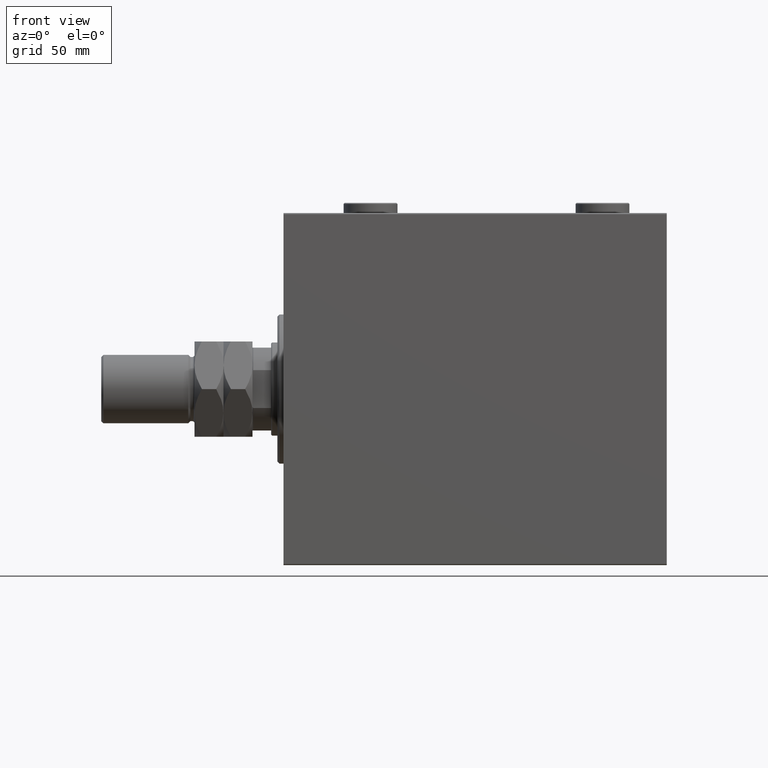
[diagram: clean part render]
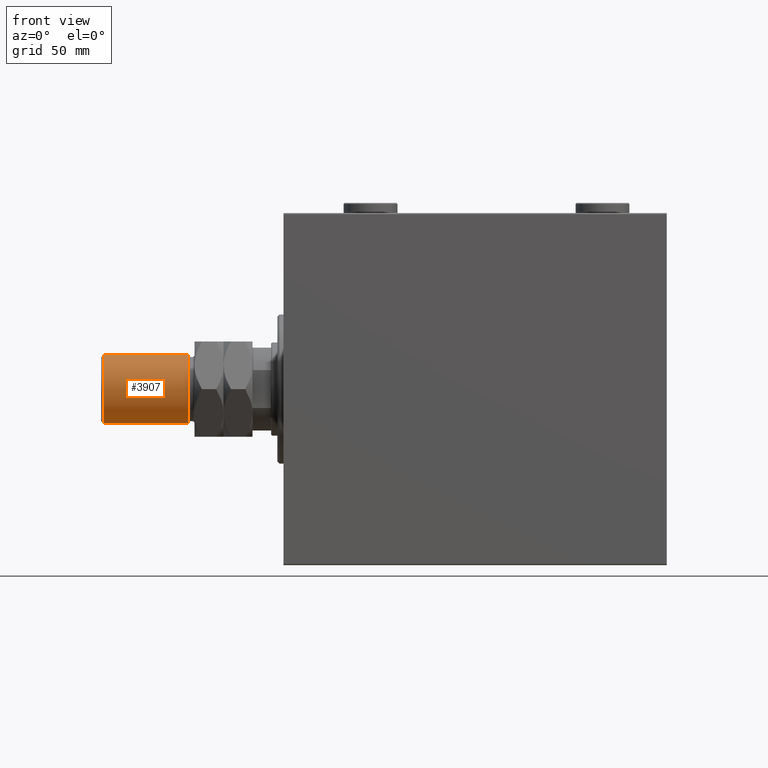
[diagram: same view with one face highlighted and labeled with its STEP entity id]
A machine part, front view. The second image highlights one B-rep face of the part: STEP entity #3907.
In plain terms, the highlighted cylindrical surface (edge-blend (fillet) strip) has radius 16.5 mm, axis along (1, -0, -0).
Its self-contained STEP definition (entity closure, byte-faithful):
#760 = EDGE_CURVE ( 'NONE', #43003, #20032, #23784, .T. ) ;
#1394 = CARTESIAN_POINT ( 'NONE',  ( -16.50000000000000000, 0.000000000000000000, 30.99999999999998579 ) ) ;
#2502 = ORIENTED_EDGE ( 'NONE', *, *, #43355, .T. ) ;
#2937 = CIRCLE ( 'NONE', #39680, 16.50000000000000000 ) ;
#3907 = ADVANCED_FACE ( 'NONE', ( #14902 ), #44155, .T. ) ;
#8924 = CARTESIAN_POINT ( 'NONE',  ( -16.50000000000000000, 0.000000000000000000, 73.00000000000000000 ) ) ;
#9072 = VERTEX_POINT ( 'NONE', #44779 ) ;
#13001 = CARTESIAN_POINT ( 'NONE',  ( 16.50000000000000000, 2.020667218593133100E-15, 30.99999999999998579 ) ) ;
#13046 = CARTESIAN_POINT ( 'NONE',  ( 16.50000000000000000, 2.020667218593133100E-15, 73.00000000000000000 ) ) ;
#14349 = DIRECTION ( 'NONE',  ( 1.000000000000000000, 0.000000000000000000, 0.000000000000000000 ) ) ;
#14902 = FACE_OUTER_BOUND ( 'NONE', #46273, .T. ) ;
#15641 = DIRECTION ( 'NONE',  ( -0.000000000000000000, -0.000000000000000000, -1.000000000000000000 ) ) ;
#16470 = DIRECTION ( 'NONE',  ( 1.000000000000000000, 0.000000000000000000, 0.000000000000000000 ) ) ;
#20032 = VERTEX_POINT ( 'NONE', #1394 ) ;
#20067 = DIRECTION ( 'NONE',  ( 0.000000000000000000, 0.000000000000000000, -1.000000000000000000 ) ) ;
#20224 = DIRECTION ( 'NONE',  ( -0.000000000000000000, -0.000000000000000000, -1.000000000000000000 ) ) ;
#20407 = CIRCLE ( 'NONE', #42636, 16.50000000000000000 ) ;
#23784 = LINE ( 'NONE', #8924, #27988 ) ;
#25472 = ORIENTED_EDGE ( 'NONE', *, *, #30324, .F. ) ;
#25739 = ORIENTED_EDGE ( 'NONE', *, *, #760, .T. ) ;
#27988 = VECTOR ( 'NONE', #15641, 1000.000000000000000 ) ;
#30153 = CARTESIAN_POINT ( 'NONE',  ( 0.000000000000000000, 0.000000000000000000, 72.00000000000000000 ) ) ;
#30324 = EDGE_CURVE ( 'NONE', #9072, #33144, #45403, .T. ) ;
#33144 = VERTEX_POINT ( 'NONE', #13001 ) ;
#34533 = EDGE_CURVE ( 'NONE', #20032, #33144, #20407, .T. ) ;
#36369 = VECTOR ( 'NONE', #20224, 1000.000000000000000 ) ;
#36747 = DIRECTION ( 'NONE',  ( -0.000000000000000000, -0.000000000000000000, -1.000000000000000000 ) ) ;
#39680 = AXIS2_PLACEMENT_3D ( 'NONE', #30153, #20067, #16470 ) ;
#40808 = DIRECTION ( 'NONE',  ( -1.000000000000000000, 0.000000000000000000, 0.000000000000000000 ) ) ;
#40896 = CARTESIAN_POINT ( 'NONE',  ( -16.50000000000000000, 0.000000000000000000, 72.00000000000000000 ) ) ;
#41084 = AXIS2_PLACEMENT_3D ( 'NONE', #44643, #36747, #40808 ) ;
#42636 = AXIS2_PLACEMENT_3D ( 'NONE', #43367, #47190, #14349 ) ;
#43003 = VERTEX_POINT ( 'NONE', #40896 ) ;
#43084 = ORIENTED_EDGE ( 'NONE', *, *, #34533, .T. ) ;
#43355 = EDGE_CURVE ( 'NONE', #9072, #43003, #2937, .T. ) ;
#43367 = CARTESIAN_POINT ( 'NONE',  ( 0.000000000000000000, 0.000000000000000000, 30.99999999999998579 ) ) ;
#44155 = CYLINDRICAL_SURFACE ( 'NONE', #41084, 16.50000000000000000 ) ;
#44643 = CARTESIAN_POINT ( 'NONE',  ( 0.000000000000000000, 0.000000000000000000, 73.00000000000000000 ) ) ;
#44779 = CARTESIAN_POINT ( 'NONE',  ( 16.50000000000000000, 2.020667218593133100E-15, 72.00000000000000000 ) ) ;
#45403 = LINE ( 'NONE', #13046, #36369 ) ;
#46273 = EDGE_LOOP ( 'NONE', ( #25472, #2502, #25739, #43084 ) ) ;
#47190 = DIRECTION ( 'NONE',  ( -0.000000000000000000, -0.000000000000000000, 1.000000000000000000 ) ) ;